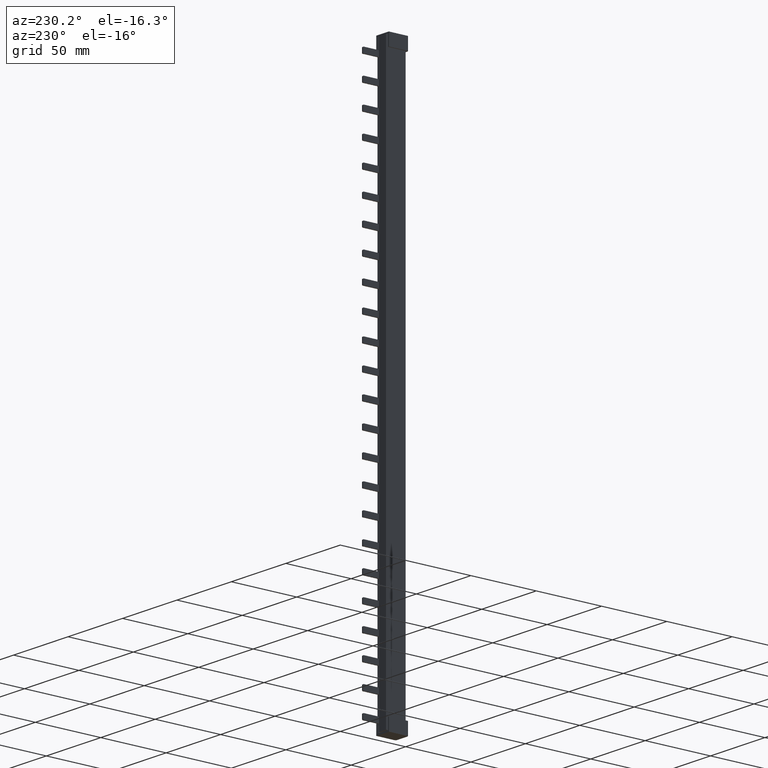
[diagram: clean part render]
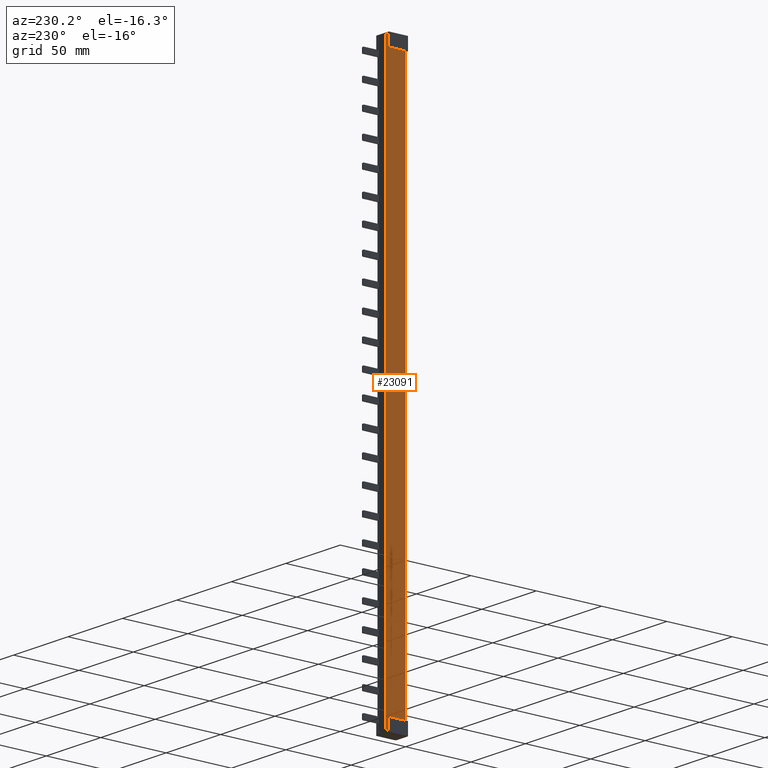
[diagram: same view with one face highlighted and labeled with its STEP entity id]
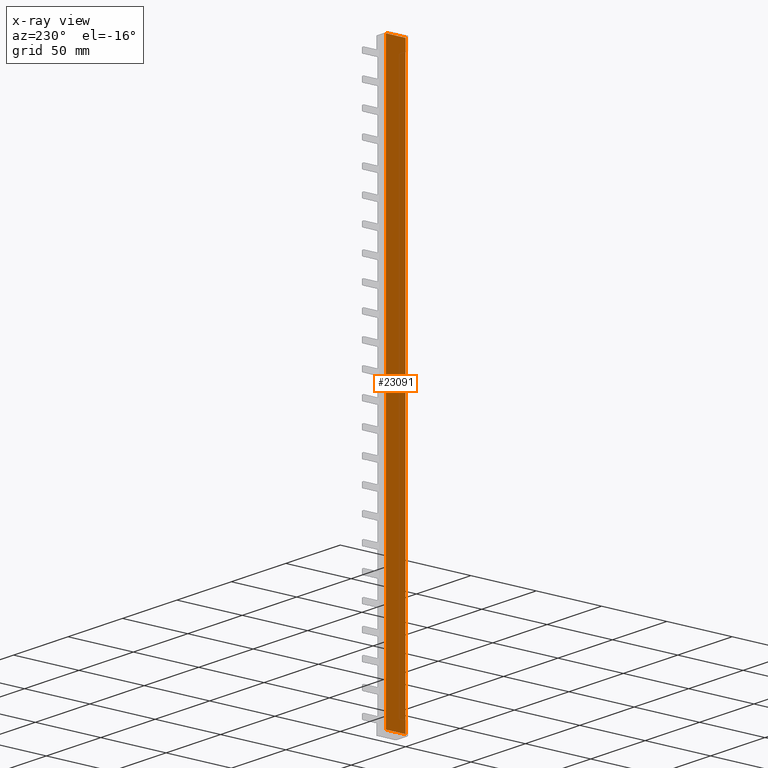
[diagram: x-ray of the same camera — body ghosted, the highlighted face saturated]
A machine part, auxiliary view. The second image highlights one B-rep face of the part: STEP entity #23091.
The next image is the same camera in x-ray: the body ghosted, the highlighted face saturated — about 0% of this face is hidden behind the body in this view.
In plain terms, the highlighted planar face has unit normal (1, -0, 0).
Its self-contained STEP definition (entity closure, byte-faithful):
#461 = AXIS2_PLACEMENT_3D ( 'NONE', #22056, #22120, #22122 ) ;
#9313 = B_SPLINE_CURVE_WITH_KNOTS ( 'NONE', 3,
 ( #30807, #30835, #30863, #30892 ),
 .UNSPECIFIED., .F., .F.,
 ( 4, 4 ),
 ( 4.011314461476054200E-018, 1.270203568385655800E-005 ),
 .UNSPECIFIED. ) ;
#9316 = B_SPLINE_CURVE_WITH_KNOTS ( 'NONE', 3,
 ( #30629, #30615, #30636, #30637 ),
 .UNSPECIFIED., .F., .F.,
 ( 4, 4 ),
 ( 0.0000000000000000000, 1.258443466528328600E-005 ),
 .UNSPECIFIED. ) ;
#9966 = VERTEX_POINT ( 'NONE', #18261 ) ;
#9968 = VERTEX_POINT ( 'NONE', #18216 ) ;
#9972 = VERTEX_POINT ( 'NONE', #18219 ) ;
#9978 = VERTEX_POINT ( 'NONE', #18251 ) ;
#9989 = VERTEX_POINT ( 'NONE', #18223 ) ;
#9993 = VERTEX_POINT ( 'NONE', #18240 ) ;
#9995 = VERTEX_POINT ( 'NONE', #18325 ) ;
#13777 = ORIENTED_EDGE ( 'NONE', *, *, #37847, .F. ) ;
#13915 = ORIENTED_EDGE ( 'NONE', *, *, #37879, .F. ) ;
#13922 = ORIENTED_EDGE ( 'NONE', *, *, #37852, .F. ) ;
#13930 = ORIENTED_EDGE ( 'NONE', *, *, #37802, .T. ) ;
#13931 = ORIENTED_EDGE ( 'NONE', *, *, #37917, .F. ) ;
#13950 = ORIENTED_EDGE ( 'NONE', *, *, #37866, .F. ) ;
#13953 = ORIENTED_EDGE ( 'NONE', *, *, #37826, .F. ) ;
#13956 = ORIENTED_EDGE ( 'NONE', *, *, #37935, .T. ) ;
#14348 = VECTOR ( 'NONE', #30830, 1000.000000000000000 ) ;
#14352 = VECTOR ( 'NONE', #30742, 1000.000000000000000 ) ;
#14358 = VECTOR ( 'NONE', #30709, 1000.000000000000000 ) ;
#14375 = VECTOR ( 'NONE', #30719, 1000.000000000000000 ) ;
#14387 = VECTOR ( 'NONE', #30659, 1000.000000000000000 ) ;
#14393 = VECTOR ( 'NONE', #30795, 1000.000000000000000 ) ;
#18216 = CARTESIAN_POINT ( 'NONE',  ( 0.0000000000000000000, 14.99999999999998600, -208.8000000000003000 ) ) ;
#18219 = CARTESIAN_POINT ( 'NONE',  ( -1.755052266709506800E-014, -1.829591166069288700E-014, -208.7999030758342100 ) ) ;
#18223 = CARTESIAN_POINT ( 'NONE',  ( 0.0000000000000000000, 13.60000000000009400, 217.7999999999999800 ) ) ;
#18240 = CARTESIAN_POINT ( 'NONE',  ( 0.0000000000000000000, 14.99999999999998600, 217.7999999999999800 ) ) ;
#18251 = CARTESIAN_POINT ( 'NONE',  ( 4.038056781313746500E-013, 0.01258406147128960300, -208.7999999943259600 ) ) ;
#18261 = CARTESIAN_POINT ( 'NONE',  ( 3.021603118951639100E-027, -3.241764495731658300E-014, 217.7999030758261700 ) ) ;
#18325 = CARTESIAN_POINT ( 'NONE',  ( 0.0000000000000000000, 13.60000000000009400, -208.7999999989872000 ) ) ;
#21947 = PLANE ( 'NONE',  #461 ) ;
#22040 = FACE_OUTER_BOUND ( 'NONE', #33834, .T. ) ;
#22056 = CARTESIAN_POINT ( 'NONE',  ( 0.0000000000000000000, 14.99999999999998600, 219.0000000000000000 ) ) ;
#22120 = DIRECTION ( 'NONE',  ( 1.000000000000000000, -0.0000000000000000000, 0.0000000000000000000 ) ) ;
#22122 = DIRECTION ( 'NONE',  ( 0.0000000000000000000, 0.0000000000000000000, -1.000000000000000000 ) ) ;
#23091 = ADVANCED_FACE ( 'NONE', ( #22040 ), #21947, .F. ) ;
#23588 = VERTEX_POINT ( 'NONE', #23823 ) ;
#23823 = CARTESIAN_POINT ( 'NONE',  ( 1.573254549562616000E-027, 0.01270166588356695800, 217.8000000000000100 ) ) ;
#30615 = CARTESIAN_POINT ( 'NONE',  ( 8.131516297753225700E-017, 0.008389249956399329200, -208.7999994135761000 ) ) ;
#30629 = CARTESIAN_POINT ( 'NONE',  ( 4.038056781313746500E-013, 0.01258406147128960300, -208.7999999943259600 ) ) ;
#30636 = CARTESIAN_POINT ( 'NONE',  ( 1.355252718414200900E-017, 0.004194310876298634900, -208.7999678852133900 ) ) ;
#30637 = CARTESIAN_POINT ( 'NONE',  ( -1.755052266709506800E-014, -1.829591166069288700E-014, -208.7999030758342100 ) ) ;
#30659 = DIRECTION ( 'NONE',  ( 0.0000000000000000000, 1.000000000000000000, 0.0000000000000000000 ) ) ;
#30672 = LINE ( 'NONE', #30674, #14387 ) ;
#30674 = CARTESIAN_POINT ( 'NONE',  ( 0.0000000000000000000, 0.0000000000000000000, -208.8000000000000100 ) ) ;
#30707 = CARTESIAN_POINT ( 'NONE',  ( 0.0000000000000000000, 14.99999999999998600, 219.0000000000000000 ) ) ;
#30709 = DIRECTION ( 'NONE',  ( 0.0000000000000000000, -1.000000000000000000, -0.0000000000000000000 ) ) ;
#30719 = DIRECTION ( 'NONE',  ( -0.0000000000000000000, -0.0000000000000000000, 1.000000000000000000 ) ) ;
#30722 = CARTESIAN_POINT ( 'NONE',  ( 0.0000000000000000000, 14.99999999999998600, -208.7999999959471000 ) ) ;
#30734 = LINE ( 'NONE', #30722, #14352 ) ;
#30737 = CARTESIAN_POINT ( 'NONE',  ( 0.0000000000000000000, 14.99999999999998600, 217.7999999999999800 ) ) ;
#30742 = DIRECTION ( 'NONE',  ( 0.0000000000000000000, 1.000000000000000000, 0.0000000000000000000 ) ) ;
#30745 = LINE ( 'NONE', #30707, #14375 ) ;
#30747 = LINE ( 'NONE', #30737, #14358 ) ;
#30762 = CARTESIAN_POINT ( 'NONE',  ( 0.0000000000000000000, 14.99999999999998600, 217.7999999999999800 ) ) ;
#30774 = LINE ( 'NONE', #30762, #14393 ) ;
#30795 = DIRECTION ( 'NONE',  ( -0.0000000000000000000, -1.000000000000000000, -0.0000000000000000000 ) ) ;
#30800 = LINE ( 'NONE', #30825, #14348 ) ;
#30807 = CARTESIAN_POINT ( 'NONE',  ( 3.021603118951639100E-027, -3.241764495731658300E-014, 217.7999030758261700 ) ) ;
#30825 = CARTESIAN_POINT ( 'NONE',  ( 0.0000000000000000000, -3.642919299551294900E-014, 219.0000000000000000 ) ) ;
#30830 = DIRECTION ( 'NONE',  ( 0.0000000000000000000, 0.0000000000000000000, -1.000000000000000000 ) ) ;
#30835 = CARTESIAN_POINT ( 'NONE',  ( 6.043206237903278100E-027, 0.004233506536940825700, 217.7999684908489800 ) ) ;
#30863 = CARTESIAN_POINT ( 'NONE',  ( 3.933136373907199300E-027, 0.008467653988947693200, 217.8000000000000100 ) ) ;
#30892 = CARTESIAN_POINT ( 'NONE',  ( 1.573254549562616000E-027, 0.01270166588356695800, 217.8000000000000100 ) ) ;
#33834 = EDGE_LOOP ( 'NONE', ( #13922, #13777, #13953, #13950, #13930, #13931, #13956, #13915 ) ) ;
#37802 = EDGE_CURVE ( 'NONE', #9978, #9972, #9316, .T. ) ;
#37826 = EDGE_CURVE ( 'NONE', #9995, #9968, #30672, .T. ) ;
#37847 = EDGE_CURVE ( 'NONE', #9968, #9993, #30745, .T. ) ;
#37852 = EDGE_CURVE ( 'NONE', #9993, #9989, #30747, .T. ) ;
#37866 = EDGE_CURVE ( 'NONE', #9978, #9995, #30734, .T. ) ;
#37879 = EDGE_CURVE ( 'NONE', #9989, #23588, #30774, .T. ) ;
#37917 = EDGE_CURVE ( 'NONE', #9966, #9972, #30800, .T. ) ;
#37935 = EDGE_CURVE ( 'NONE', #9966, #23588, #9313, .T. ) ;